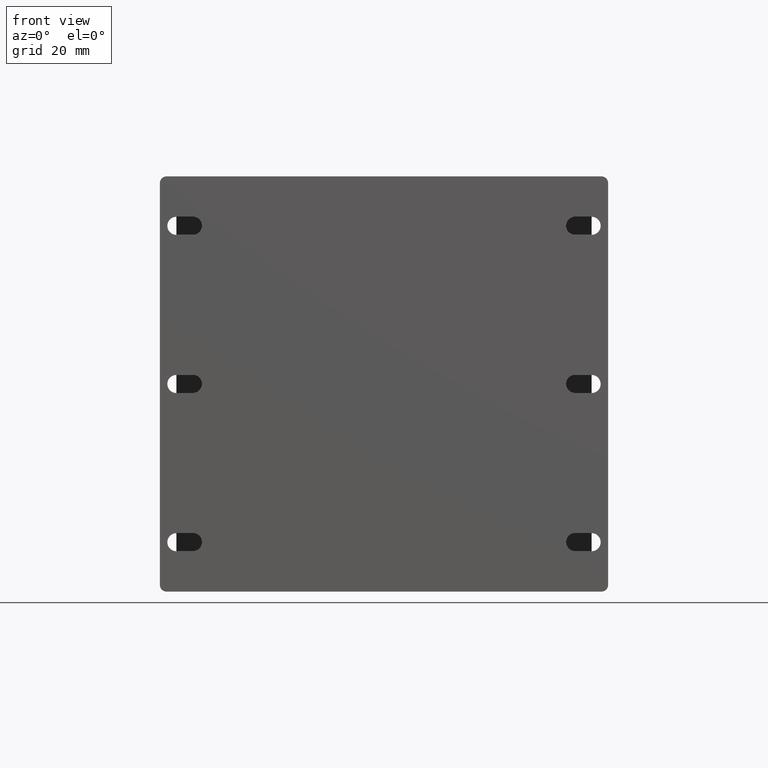
[diagram: clean part render]
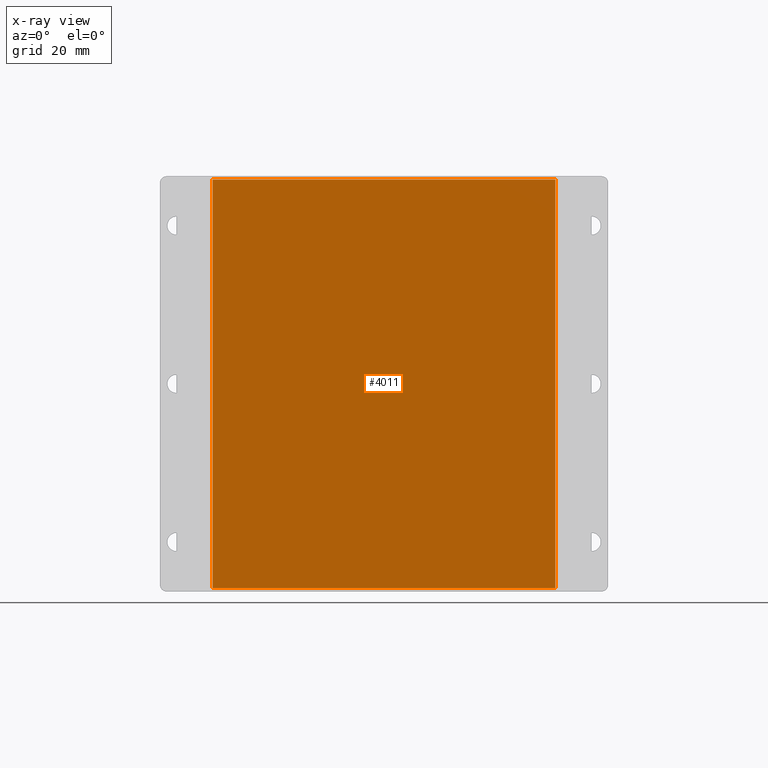
[diagram: x-ray — body ghosted, one internal face saturated and labeled with its STEP entity id]
A machine part, front view, then the same camera in x-ray: the body is ghosted and one INTERNAL B-rep face — a face not visible from any outside direction — is saturated and labeled: STEP entity #4011.
In plain terms, the highlighted planar face has unit normal (0, 1, 0).
Its self-contained STEP definition (entity closure, byte-faithful):
#298=FACE_OUTER_BOUND('',#546,.T.);
#546=EDGE_LOOP('',(#2544,#2545,#2546,#2547));
#826=LINE('',#5920,#1218);
#830=LINE('',#5928,#1222);
#833=LINE('',#5934,#1225);
#836=LINE('',#5939,#1228);
#1218=VECTOR('',#4747,10.);
#1222=VECTOR('',#4753,10.);
#1225=VECTOR('',#4758,10.);
#1228=VECTOR('',#4763,10.);
#1610=VERTEX_POINT('',#5918);
#1611=VERTEX_POINT('',#5919);
#1614=VERTEX_POINT('',#5927);
#1616=VERTEX_POINT('',#5933);
#1962=EDGE_CURVE('',#1610,#1611,#826,.T.);
#1966=EDGE_CURVE('',#1611,#1614,#830,.T.);
#1969=EDGE_CURVE('',#1614,#1616,#833,.T.);
#1972=EDGE_CURVE('',#1616,#1610,#836,.T.);
#2544=ORIENTED_EDGE('',*,*,#1962,.T.);
#2545=ORIENTED_EDGE('',*,*,#1966,.T.);
#2546=ORIENTED_EDGE('',*,*,#1969,.T.);
#2547=ORIENTED_EDGE('',*,*,#1972,.T.);
#3566=PLANE('',#4368);
#4011=ADVANCED_FACE('',(#298),#3566,.T.);
#4368=AXIS2_PLACEMENT_3D('',#5996,#4808,#4809);
#4747=DIRECTION('',(1.,0.,-6.83214169000096E-16));
#4753=DIRECTION('',(-4.65577397423453E-16,0.,-1.));
#4758=DIRECTION('',(-1.,0.,1.22765045992205E-16));
#4763=DIRECTION('',(4.29763751467803E-16,0.,1.));
#4808=DIRECTION('center_axis',(0.,1.,0.));
#4809=DIRECTION('ref_axis',(0.,0.,1.));
#5918=CARTESIAN_POINT('',(-120.,5.,125.));
#5919=CARTESIAN_POINT('',(-16.,5.,125.));
#5920=CARTESIAN_POINT('',(-42.,5.,125.));
#5927=CARTESIAN_POINT('',(-16.0000000000001,5.,1.00000000000001));
#5928=CARTESIAN_POINT('',(-16.,5.,32.));
#5933=CARTESIAN_POINT('',(-120.,5.,1.00000000000002));
#5934=CARTESIAN_POINT('',(-94.,5.,1.00000000000002));
#5939=CARTESIAN_POINT('',(-120.,5.,94.));
#5996=CARTESIAN_POINT('Origin',(-68.,5.,63.));